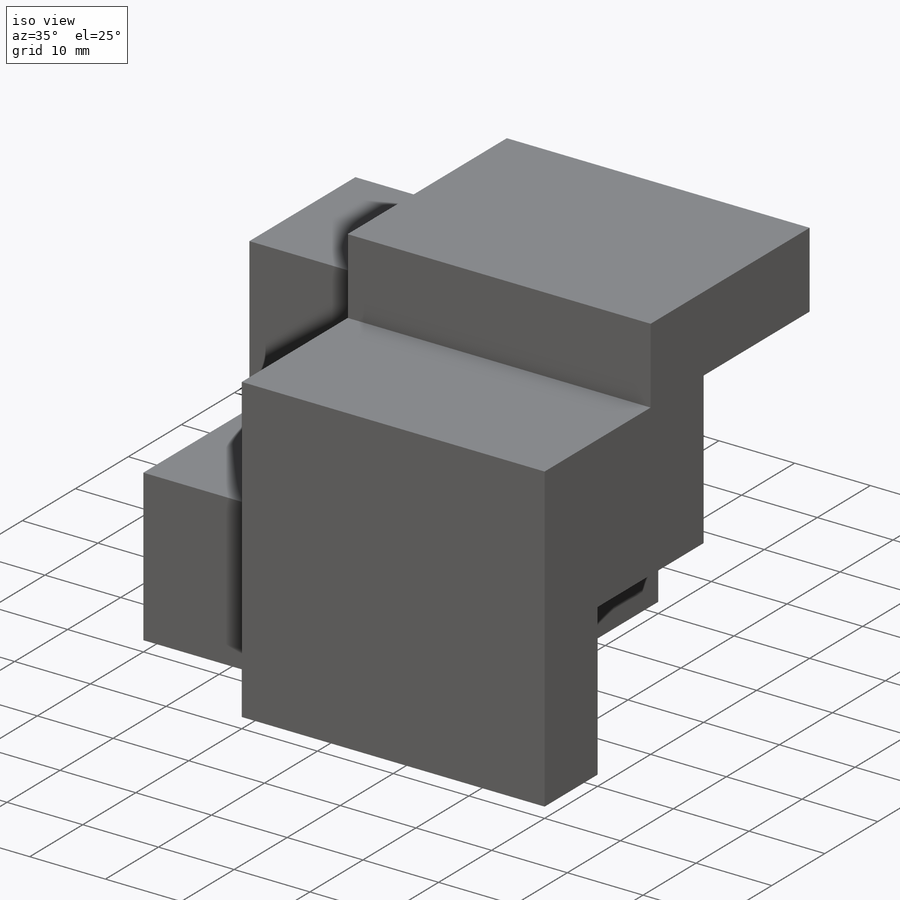
[diagram: iso view]
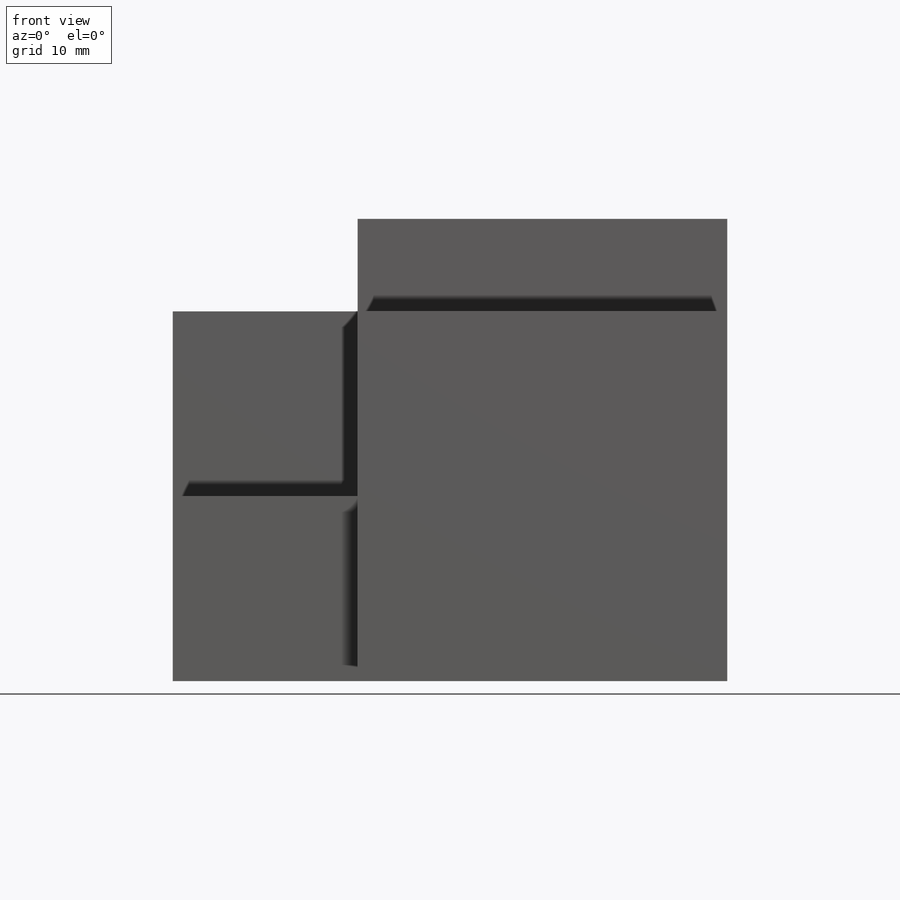
[diagram: front view]
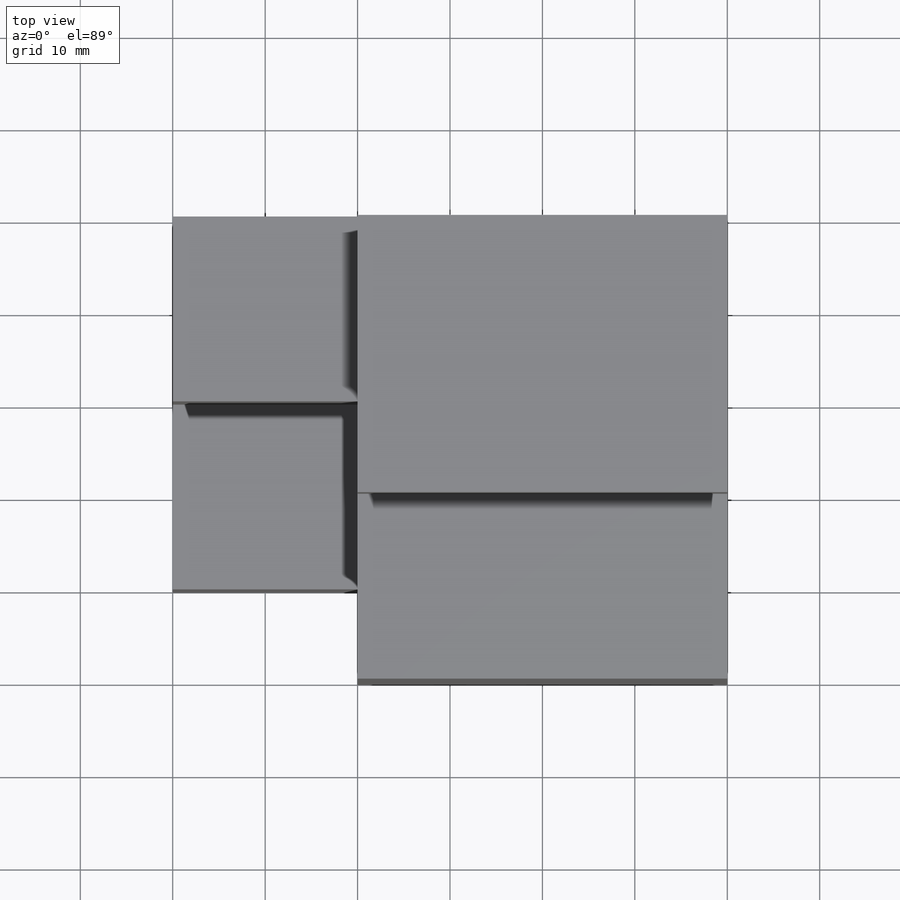
[diagram: top view]
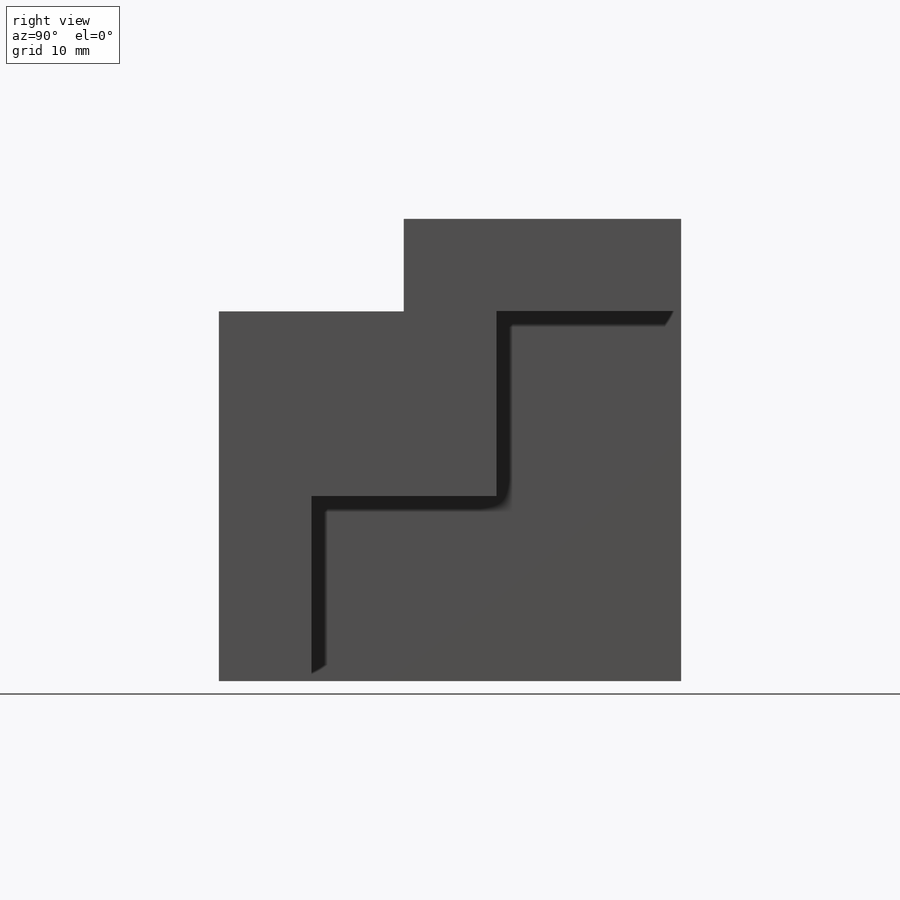
[diagram: right view]
SOLIDWORKS PART (.sldprt)
format: sldprt  version: not decoded by parser v0  size: 210,944 bytes
history: native  units: mm
features: sketch x9, cut_extrude x7, extrude x2, material x1, plane x1 (+13 scaffold rows collapsed)
feature tree (33):
  scaffold x13  (default folders/planes/origin — collapsed)
  material  "Material <not specified>"
  sketch  "Sketch1"  dims[c1.D1=~46.162903mm c1.D2=~72.167333mm c2.D1=60.0mm c2.D2=50.0mm]
  extrude  "Boss-Extrude1"  Depth=50mm
  sketch  "Sketch2"  dims[c1.D1=~8.929712mm c1.D2=~17.933441mm c2.D1=20.0mm c2.D2=10.0mm]
  cut_extrude  "Cut-Extrude1"  Depth=50mm
  sketch  "Sketch3"  dims[c1.D1=~19.127617mm c1.D2=~19.820576mm c2.D1=20.0mm c2.D2=20.0mm]
  cut_extrude  "Cut-Extrude2"  Depth=20mm
  sketch  "Sketch4"  dims[c1.D1=~11.87838mm c1.D2=40.0mm c2.D1=10.0mm]
  cut_extrude  "Cut-Extrude3"  Depth=30mm
  sketch  "Sketch5"  dims[D1=20.0mm D2=20.0mm]
  cut_extrude  "Cut-Extrude4"  Depth=10mm
  sketch  "Sketch6"  dims[c1.D1=20.0mm c1.D2=~19.290469mm c2.D1=20.0mm]
  cut_extrude  "Cut-Extrude5"  Depth=10mm
  plane  "Plane1"
  sketch  "Sketch8"  dims[D1=10.0mm D2=40.0mm]
  extrude  "Boss-Extrude2"  Depth=10mm
  sketch  "Sketch9"  dims[c1.D1=~42.532938mm c1.D2=~21.960553mm c2.D1=20.0mm c2.D2=40.0mm]
  cut_extrude  "Cut-Extrude6"  Depth=20mm
  sketch  "Sketch10"  dims[c1.D1=~20.676831mm c1.D2=20.0mm c2.D1=20.0mm]
  cut_extrude  "Cut-Extrude7"  Depth=20mm
decode coverage: 18 of 18 modeling features carry decoded parameters
note: ~ marks probable driven/reference dimensions
note: suppression state not decoded; provenance and decode notes live in map.json
